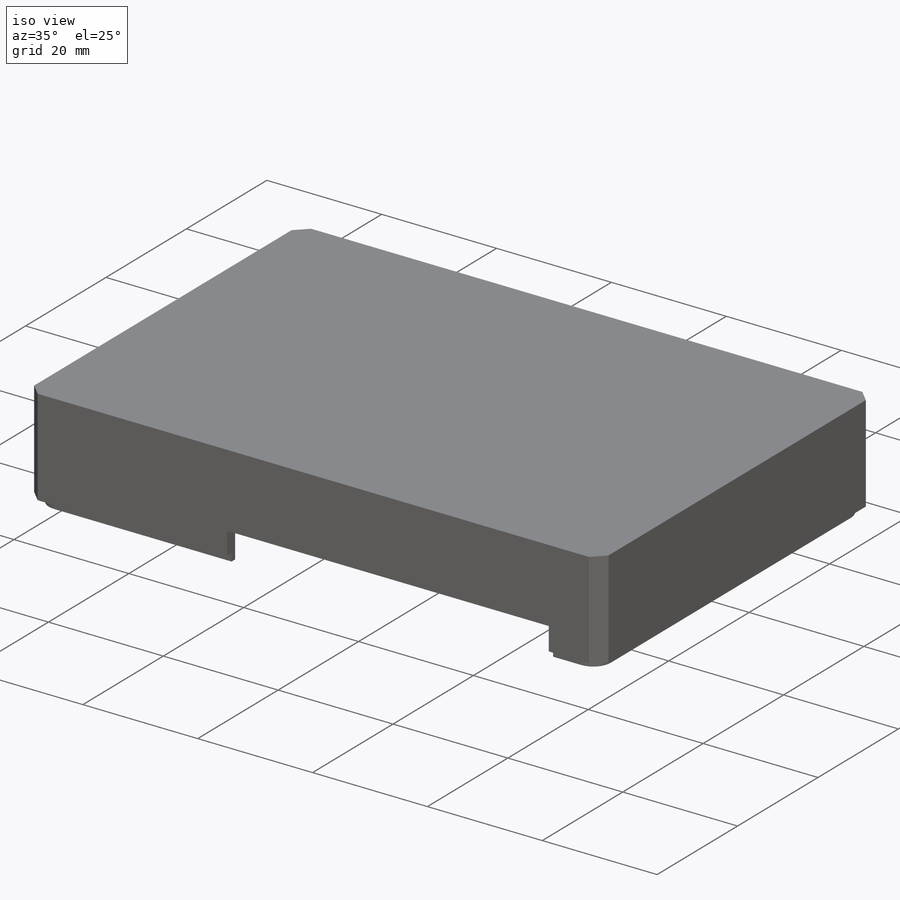
[diagram: iso view]
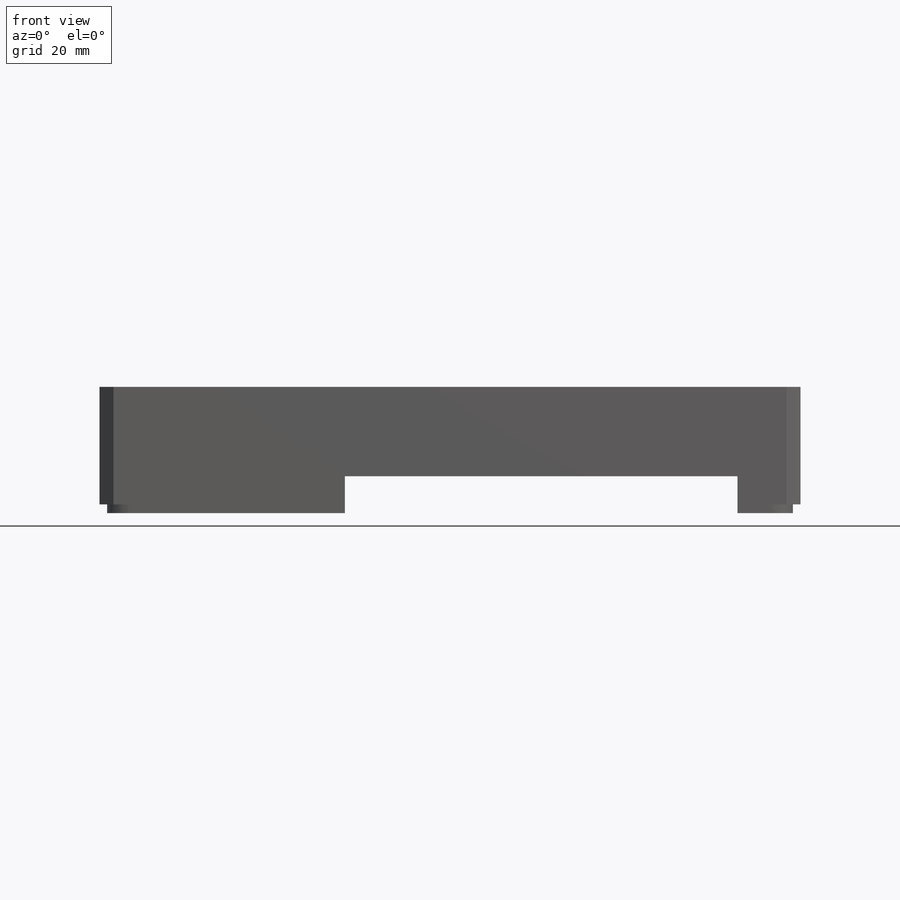
[diagram: front view]
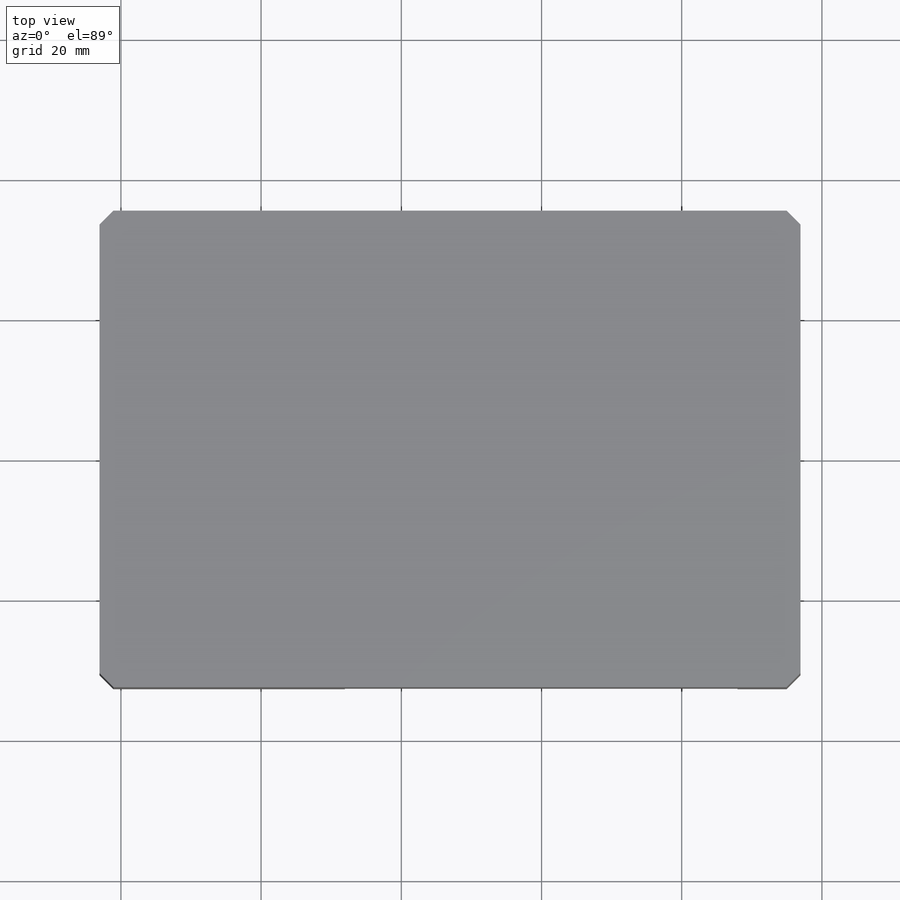
[diagram: top view]
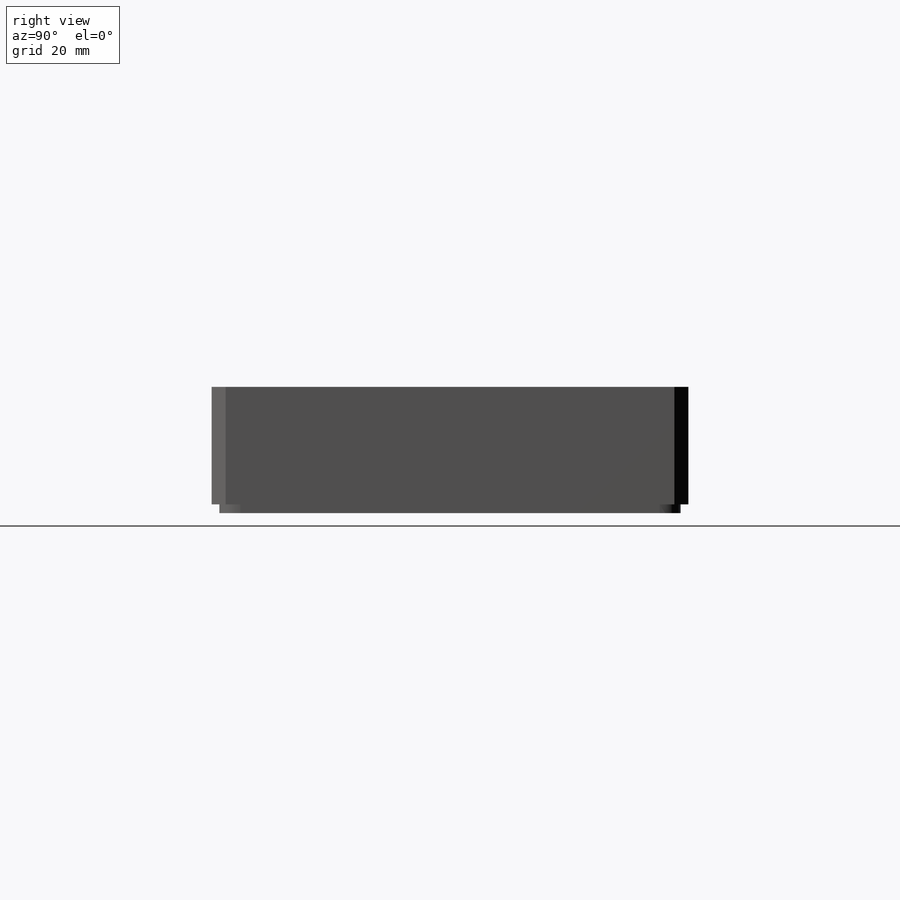
[diagram: right view]
SOLIDWORKS PART (.sldprt)
format: sldprt  version: not decoded by parser v0  size: 619,520 bytes
history: native  units: mm
features: sketch x11, cut_extrude x9, fillet x2, material x1, extrude x1 (+12 scaffold rows collapsed)
feature tree (36):
  scaffold x12  (default folders/planes/origin — collapsed)
  material  "Material <not specified>"
  sketch  "Sketch1"  dims[D1=100.0mm D2=68.0mm]
  extrude  "base"  Depth=18mm
  sketch  "Sketch5"  dims[D1=2.8mm D2=5.5mm D3=5.5mm D4=2.0 D5=2.0]
  cut_extrude  "screw holes"  Depth=2mm
  sketch  "Sketch2"  dims[c1.D7=3.5mm c1.D1=2.0mm c1.D2=2.0mm c1.D3=2.0mm c1.D4=2.0mm c2.D1=2.0mm c2.D5=10.0mm c3.D1=2.0mm c3.D2=2.0mm c4.D1=2.0mm c4.D2=2.0mm c4.D3=2.0mm c4.D4=2.0mm c4.D5=8.5mm c4.D6=8.5mm c5.D3=6.0mm c5.D4=6.0mm]
  cut_extrude  "chamber"  Depth=2mm
  sketch  "Sketch3"  dims[c1.D4=3.0mm c1.D5=2.0mm c1.D6=2.0mm c1.D7=3.0mm c1.D8=2.0mm c1.D9=3.0mm c1.D10=2.0mm c1.D11=3.0mm c1.D1=0.0mm c1.D2=0.0mm c1.D3=0.0mm c2.D4=0.0mm c2.D5=1.0mm c2.D6=1.0mm c2.D7=1.0mm c2.D8=1.0mm c2.D9=2.0mm c2.D2=1.1mm c2.D3=1.1mm c3.D5=1.1mm c3.D6=1.1mm c3.D1=0.0mm c3.D2=2.0mm c3.D3=1.0mm]
  cut_extrude  "lip"  Depth=1.25mm
  sketch  "Sketch6"  dims[c1.D1=35.0mm c1.D2=4.5mm c2.D1=0.5mm c2.D3=0.5mm c2.D2=0.5mm c2.D4=5.5mm]
  cut_extrude  "Cut-Extrude4"  [1 undecoded]
  sketch  "Sketch7"  dims[D1=0.5mm D2=0.5mm D3=0.5mm D4=0.5mm D5=0.5mm D6=0.5mm D7=0.5mm D8=0.5mm D9=0.5mm D10=17.0mm]
  cut_extrude  "Cut-Extrude5"  [1 undecoded]
  sketch  "Sketch9"  dims[c1.D1=3.0mm c1.D2=3.0mm c2.D1=1.7mm]
  sketch  "Sketch10"  dims[D1=8.0mm D2=5.0mm]
  cut_extrude  "Cut-Extrude6"  [1 undecoded]
  sketch  "Sketch11"
  cut_extrude  "Rib5"  Depth=1.7mm
  sketch  "Sketch12"  dims[c1.D2=20.0mm c1.D3=20.0mm c1.D4=12.0mm c1.D5=12.0mm c1.D1=20.0mm c2.D2=17.0mm c2.D3=17.0mm c2.D4=20.0mm c2.D1=20.0mm c3.D2=20.0mm c3.D3=17.0mm c3.D4=17.0mm c3.D1=0.0mm]
  cut_extrude  "Cut-Extrude7"  [1 undecoded]
  fillet  "Fillet1"  Radius=4mm
  fillet  "Fillet10"  Radius=3mm
  sketch  "Sketch14"  dims[D1=0.0mm]
  cut_extrude  "Cut-Extrude9"  Depth=6mm
decode coverage: 18 of 23 modeling features carry decoded parameters
note: 4 parameter values undecoded
summary: no parameter record found for 4 features
note: suppression state not decoded; provenance and decode notes live in map.json
